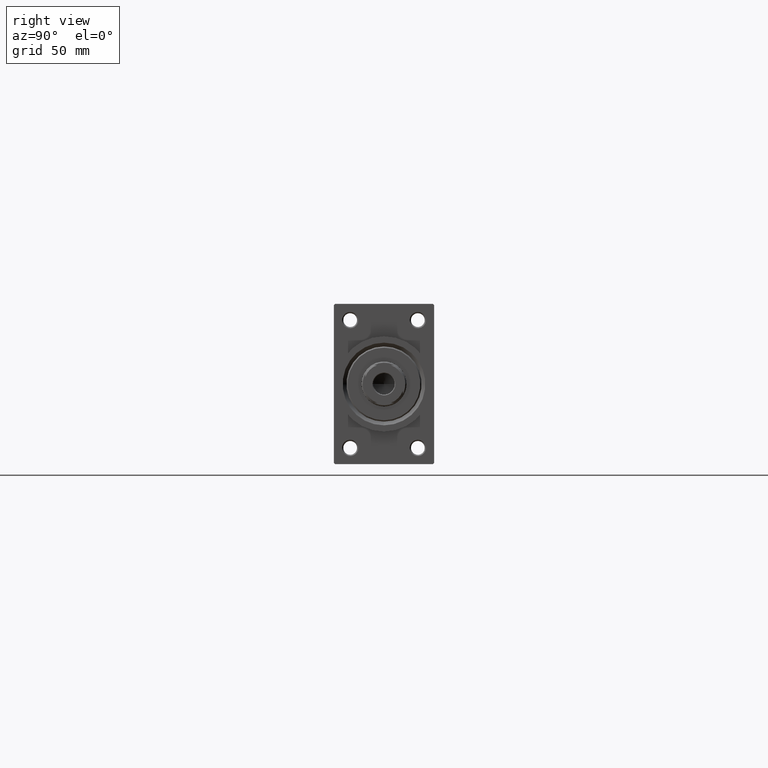
[diagram: clean part render]
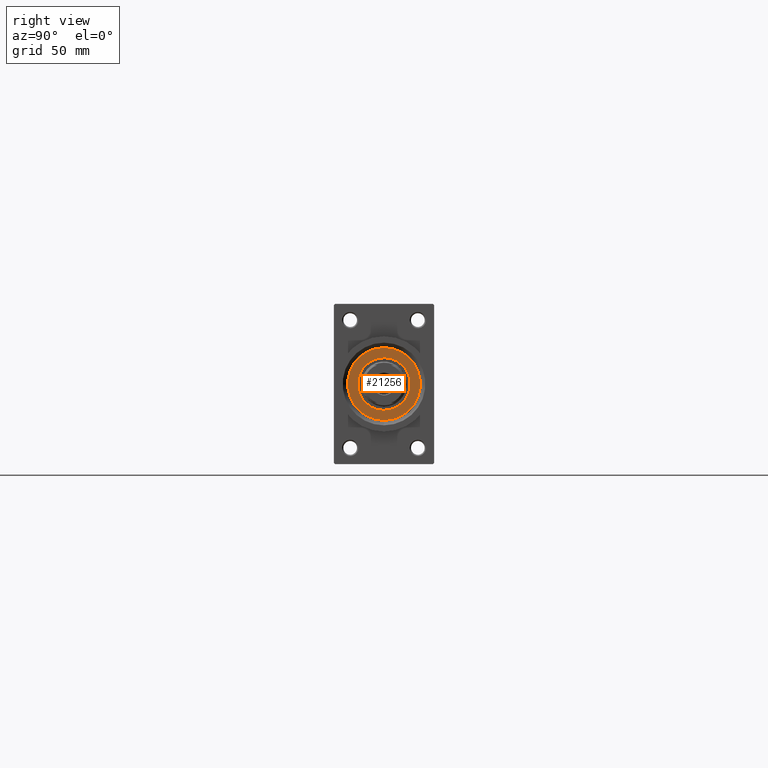
[diagram: same view with one face highlighted and labeled with its STEP entity id]
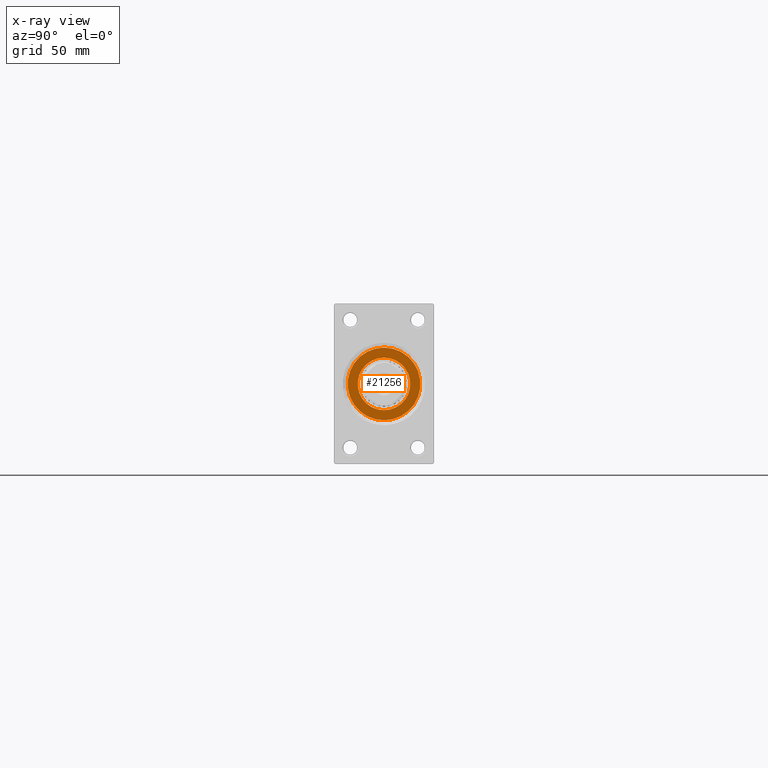
[diagram: x-ray of the same camera — body ghosted, the highlighted face saturated]
A machine part, right view. The second image highlights one B-rep face of the part: STEP entity #21256.
The next image is the same camera in x-ray: the body ghosted, the highlighted face saturated — about 0% of this face is hidden behind the body in this view.
In plain terms, the highlighted planar face has unit normal (1, -0, -0).
Its self-contained STEP definition (entity closure, byte-faithful):
#676 = DIRECTION ( 'NONE',  ( 1.000000000000000000, 0.000000000000000000, 0.000000000000000000 ) ) ;
#1561 = EDGE_CURVE ( 'NONE', #8649, #37594, #37298, .T. ) ;
#2120 = EDGE_LOOP ( 'NONE', ( #14726, #46389 ) ) ;
#3616 = DIRECTION ( 'NONE',  ( 1.000000000000000000, 0.000000000000000000, 0.000000000000000000 ) ) ;
#3619 = ORIENTED_EDGE ( 'NONE', *, *, #13183, .T. ) ;
#4600 = DIRECTION ( 'NONE',  ( 1.000000000000000000, 0.000000000000000000, -0.000000000000000000 ) ) ;
#6042 = DIRECTION ( 'NONE',  ( 1.000000000000000000, 0.000000000000000000, 0.000000000000000000 ) ) ;
#7574 = AXIS2_PLACEMENT_3D ( 'NONE', #44632, #26762, #4600 ) ;
#7943 = EDGE_LOOP ( 'NONE', ( #38979, #3619 ) ) ;
#8649 = VERTEX_POINT ( 'NONE', #44195 ) ;
#10656 = AXIS2_PLACEMENT_3D ( 'NONE', #40402, #40869, #29202 ) ;
#10904 = CIRCLE ( 'NONE', #38329, 10.50000000000000000 ) ;
#11109 = VERTEX_POINT ( 'NONE', #46162 ) ;
#13183 = EDGE_CURVE ( 'NONE', #37594, #8649, #45190, .T. ) ;
#14726 = ORIENTED_EDGE ( 'NONE', *, *, #25595, .F. ) ;
#15548 = FACE_OUTER_BOUND ( 'NONE', #7943, .T. ) ;
#21256 = ADVANCED_FACE ( 'NONE', ( #23200, #15548 ), #37487, .T. ) ;
#23057 = CARTESIAN_POINT ( 'NONE',  ( 0.000000000000000000, 0.000000000000000000, 50.25999999999999801 ) ) ;
#23200 = FACE_BOUND ( 'NONE', #2120, .T. ) ;
#25241 = CIRCLE ( 'NONE', #41968, 10.50000000000000000 ) ;
#25595 = EDGE_CURVE ( 'NONE', #27540, #11109, #25241, .T. ) ;
#26762 = DIRECTION ( 'NONE',  ( 0.000000000000000000, 0.000000000000000000, 1.000000000000000000 ) ) ;
#27540 = VERTEX_POINT ( 'NONE', #33396 ) ;
#29202 = DIRECTION ( 'NONE',  ( 1.000000000000000000, 0.000000000000000000, 0.000000000000000000 ) ) ;
#31524 = AXIS2_PLACEMENT_3D ( 'NONE', #23057, #41164, #676 ) ;
#33396 = CARTESIAN_POINT ( 'NONE',  ( 10.50000000000000000, 0.000000000000000000, 50.25999999999999801 ) ) ;
#34840 = EDGE_CURVE ( 'NONE', #11109, #27540, #10904, .T. ) ;
#35131 = DIRECTION ( 'NONE',  ( 0.000000000000000000, 0.000000000000000000, 1.000000000000000000 ) ) ;
#37298 = CIRCLE ( 'NONE', #10656, 14.49999999999999112 ) ;
#37487 = PLANE ( 'NONE',  #7574 ) ;
#37594 = VERTEX_POINT ( 'NONE', #45386 ) ;
#38329 = AXIS2_PLACEMENT_3D ( 'NONE', #44968, #35131, #6042 ) ;
#38979 = ORIENTED_EDGE ( 'NONE', *, *, #1561, .T. ) ;
#40305 = CARTESIAN_POINT ( 'NONE',  ( 0.000000000000000000, 0.000000000000000000, 50.25999999999999801 ) ) ;
#40402 = CARTESIAN_POINT ( 'NONE',  ( 0.000000000000000000, 0.000000000000000000, 50.25999999999999801 ) ) ;
#40869 = DIRECTION ( 'NONE',  ( 0.000000000000000000, 0.000000000000000000, 1.000000000000000000 ) ) ;
#41164 = DIRECTION ( 'NONE',  ( 0.000000000000000000, 0.000000000000000000, 1.000000000000000000 ) ) ;
#41968 = AXIS2_PLACEMENT_3D ( 'NONE', #40305, #46734, #3616 ) ;
#44195 = CARTESIAN_POINT ( 'NONE',  ( -14.49999999999999112, 0.000000000000000000, 50.25999999999999801 ) ) ;
#44632 = CARTESIAN_POINT ( 'NONE',  ( 0.000000000000000000, 0.000000000000000000, 50.25999999999999801 ) ) ;
#44968 = CARTESIAN_POINT ( 'NONE',  ( 0.000000000000000000, 0.000000000000000000, 50.25999999999999801 ) ) ;
#45190 = CIRCLE ( 'NONE', #31524, 14.49999999999999112 ) ;
#45386 = CARTESIAN_POINT ( 'NONE',  ( 14.49999999999999112, 1.806354028742345013E-15, 50.25999999999999801 ) ) ;
#46162 = CARTESIAN_POINT ( 'NONE',  ( -10.50000000000000000, 1.285879139104720831E-15, 50.25999999999999801 ) ) ;
#46389 = ORIENTED_EDGE ( 'NONE', *, *, #34840, .F. ) ;
#46734 = DIRECTION ( 'NONE',  ( 0.000000000000000000, 0.000000000000000000, 1.000000000000000000 ) ) ;